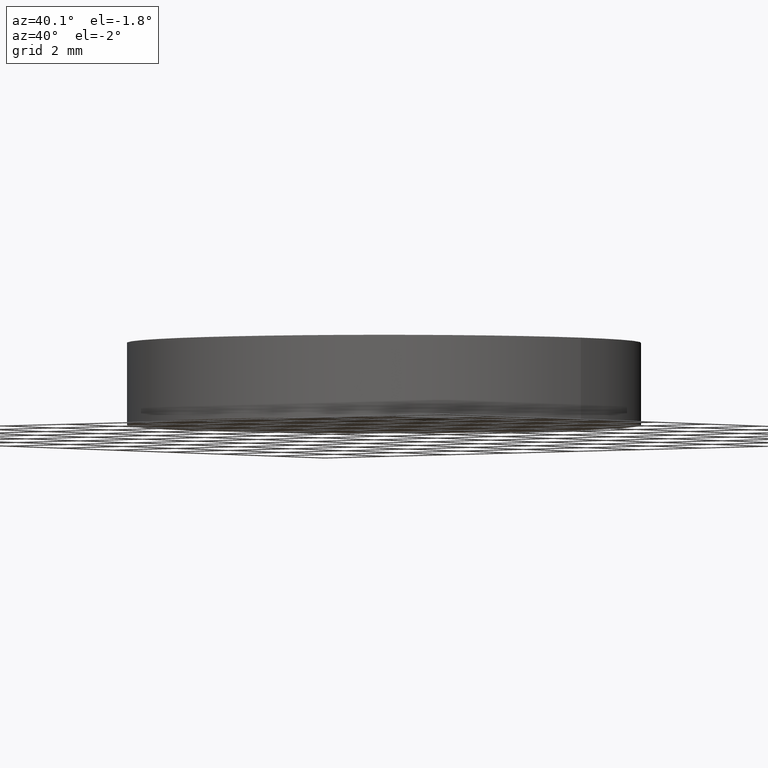
[diagram: clean part render]
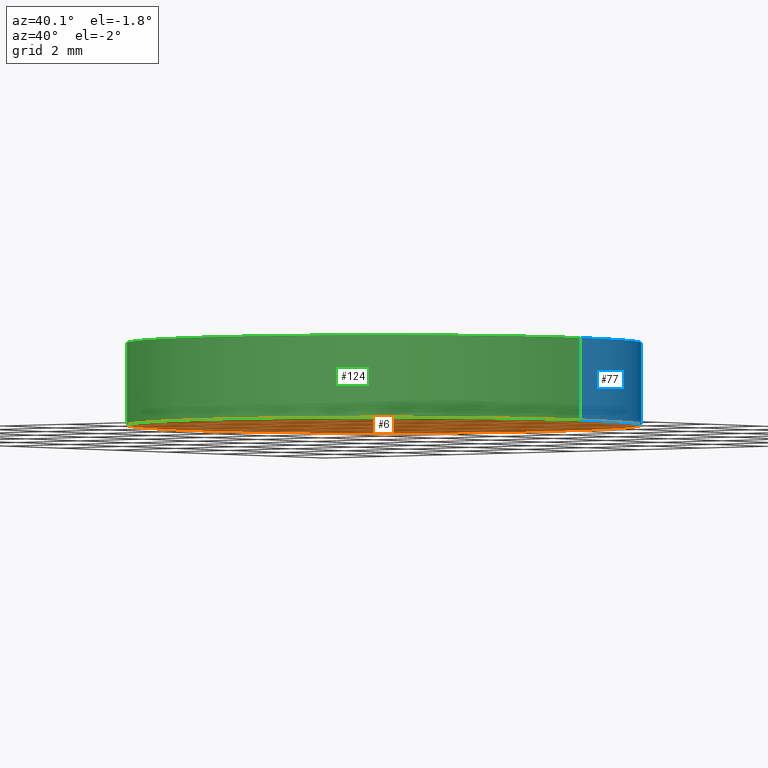
[diagram: same view with three faces highlighted in distinct colors, each labeled with its STEP entity id]
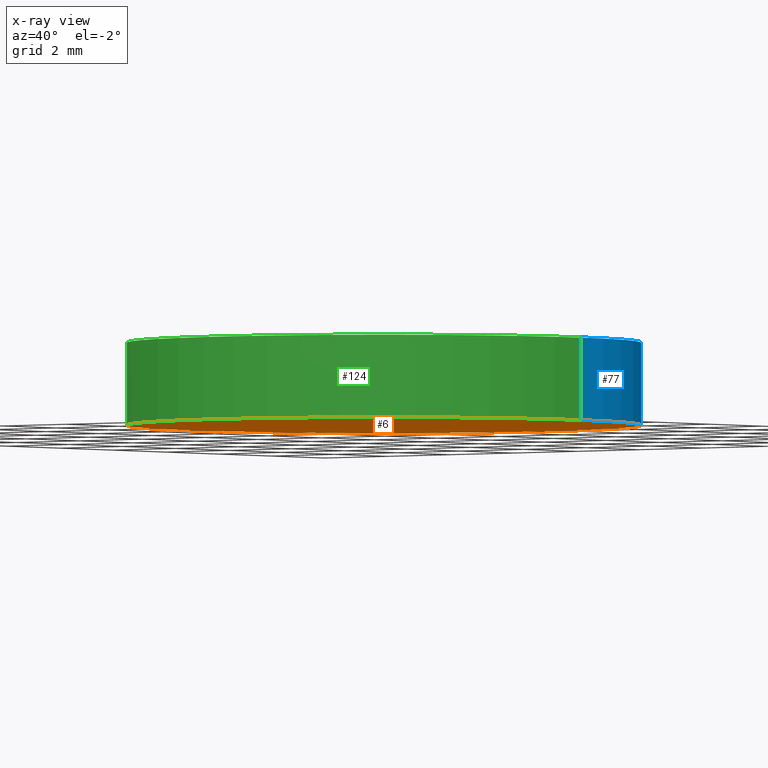
[diagram: x-ray of the same camera — body ghosted, the three highlighted faces saturated]
A machine part, auxiliary view with three faces highlighted in distinct colors.
The next image is the same camera in x-ray (body ghosted, the three faces saturated) — at least one of them is partly hidden behind the body in this view.
Their STEP definitions:

[orange] entity #6 — the highlighted planar face has unit normal (0, 0, 1).
#1 = DIRECTION ( 'NONE',  ( 0.0000000000000000000, 0.0000000000000000000, 1.000000000000000000 ) ) ;
#4 = CIRCLE ( 'NONE', #115, 6.250000000000000000 ) ;
#6 = ADVANCED_FACE ( 'NONE', ( #59 ), #35, .F. ) ;
#11 = VERTEX_POINT ( 'NONE', #78 ) ;
#13 = EDGE_CURVE ( 'NONE', #91, #11, #113, .T. ) ;
#28 = DIRECTION ( 'NONE',  ( 1.000000000000000000, 0.0000000000000000000, -0.0000000000000000000 ) ) ;
#33 = EDGE_CURVE ( 'NONE', #11, #91, #4, .T. ) ;
#35 = PLANE ( 'NONE',  #61 ) ;
#43 = ORIENTED_EDGE ( 'NONE', *, *, #33, .F. ) ;
#44 = DIRECTION ( 'NONE',  ( 1.000000000000000000, 0.0000000000000000000, 0.0000000000000000000 ) ) ;
#45 = CARTESIAN_POINT ( 'NONE',  ( 0.0000000000000000000, 0.0000000000000000000, 0.0000000000000000000 ) ) ;
#52 = DIRECTION ( 'NONE',  ( 0.0000000000000000000, 0.0000000000000000000, 1.000000000000000000 ) ) ;
#59 = FACE_OUTER_BOUND ( 'NONE', #127, .T. ) ;
#61 = AXIS2_PLACEMENT_3D ( 'NONE', #45, #52, #28 ) ;
#78 = CARTESIAN_POINT ( 'NONE',  ( 6.250000000000000000, 7.654042494670957600E-016, 0.0000000000000000000 ) ) ;
#85 = CARTESIAN_POINT ( 'NONE',  ( -6.250000000000000000, 0.0000000000000000000, 0.0000000000000000000 ) ) ;
#91 = VERTEX_POINT ( 'NONE', #85 ) ;
#94 = DIRECTION ( 'NONE',  ( 1.000000000000000000, 0.0000000000000000000, 0.0000000000000000000 ) ) ;
#103 = AXIS2_PLACEMENT_3D ( 'NONE', #128, #1, #94 ) ;
#104 = CARTESIAN_POINT ( 'NONE',  ( 0.0000000000000000000, 0.0000000000000000000, 0.0000000000000000000 ) ) ;
#113 = CIRCLE ( 'NONE', #103, 6.250000000000000000 ) ;
#115 = AXIS2_PLACEMENT_3D ( 'NONE', #104, #123, #44 ) ;
#123 = DIRECTION ( 'NONE',  ( 0.0000000000000000000, 0.0000000000000000000, 1.000000000000000000 ) ) ;
#127 = EDGE_LOOP ( 'NONE', ( #129, #43 ) ) ;
#128 = CARTESIAN_POINT ( 'NONE',  ( 0.0000000000000000000, 0.0000000000000000000, 0.0000000000000000000 ) ) ;
#129 = ORIENTED_EDGE ( 'NONE', *, *, #13, .F. ) ;

[blue] entity #77 — the highlighted cylindrical surface (partial cylindrical patch) has radius 6.25 mm, axis along (-0, -0, -1).
#4 = CIRCLE ( 'NONE', #115, 6.250000000000000000 ) ;
#7 = VERTEX_POINT ( 'NONE', #8 ) ;
#8 = CARTESIAN_POINT ( 'NONE',  ( -6.250000000000000000, 0.0000000000000000000, 2.000000000000000000 ) ) ;
#11 = VERTEX_POINT ( 'NONE', #78 ) ;
#19 = EDGE_CURVE ( 'NONE', #136, #11, #21, .T. ) ;
#20 = FACE_OUTER_BOUND ( 'NONE', #71, .T. ) ;
#21 = LINE ( 'NONE', #121, #58 ) ;
#23 = DIRECTION ( 'NONE',  ( 0.0000000000000000000, 0.0000000000000000000, 1.000000000000000000 ) ) ;
#25 = CARTESIAN_POINT ( 'NONE',  ( 6.250000000000000000, 7.654042494670957600E-016, 2.000000000000000000 ) ) ;
#27 = DIRECTION ( 'NONE',  ( -0.0000000000000000000, -0.0000000000000000000, -1.000000000000000000 ) ) ;
#29 = LINE ( 'NONE', #76, #111 ) ;
#33 = EDGE_CURVE ( 'NONE', #11, #91, #4, .T. ) ;
#36 = ORIENTED_EDGE ( 'NONE', *, *, #96, .F. ) ;
#38 = CIRCLE ( 'NONE', #50, 6.250000000000000000 ) ;
#44 = DIRECTION ( 'NONE',  ( 1.000000000000000000, 0.0000000000000000000, 0.0000000000000000000 ) ) ;
#48 = EDGE_CURVE ( 'NONE', #7, #91, #29, .T. ) ;
#50 = AXIS2_PLACEMENT_3D ( 'NONE', #112, #23, #57 ) ;
#57 = DIRECTION ( 'NONE',  ( 1.000000000000000000, 0.0000000000000000000, 0.0000000000000000000 ) ) ;
#58 = VECTOR ( 'NONE', #83, 1000.000000000000000 ) ;
#68 = ORIENTED_EDGE ( 'NONE', *, *, #33, .T. ) ;
#71 = EDGE_LOOP ( 'NONE', ( #36, #97, #68, #122 ) ) ;
#76 = CARTESIAN_POINT ( 'NONE',  ( -6.250000000000000000, 0.0000000000000000000, 2.000000000000000000 ) ) ;
#77 = ADVANCED_FACE ( 'NONE', ( #20 ), #84, .T. ) ;
#78 = CARTESIAN_POINT ( 'NONE',  ( 6.250000000000000000, 7.654042494670957600E-016, 0.0000000000000000000 ) ) ;
#83 = DIRECTION ( 'NONE',  ( -0.0000000000000000000, -0.0000000000000000000, -1.000000000000000000 ) ) ;
#84 = CYLINDRICAL_SURFACE ( 'NONE', #90, 6.250000000000000000 ) ;
#85 = CARTESIAN_POINT ( 'NONE',  ( -6.250000000000000000, 0.0000000000000000000, 0.0000000000000000000 ) ) ;
#88 = DIRECTION ( 'NONE',  ( -0.0000000000000000000, -0.0000000000000000000, -1.000000000000000000 ) ) ;
#90 = AXIS2_PLACEMENT_3D ( 'NONE', #98, #88, #110 ) ;
#91 = VERTEX_POINT ( 'NONE', #85 ) ;
#96 = EDGE_CURVE ( 'NONE', #136, #7, #38, .T. ) ;
#97 = ORIENTED_EDGE ( 'NONE', *, *, #19, .T. ) ;
#98 = CARTESIAN_POINT ( 'NONE',  ( 0.0000000000000000000, 0.0000000000000000000, 2.000000000000000000 ) ) ;
#104 = CARTESIAN_POINT ( 'NONE',  ( 0.0000000000000000000, 0.0000000000000000000, 0.0000000000000000000 ) ) ;
#110 = DIRECTION ( 'NONE',  ( -1.000000000000000000, 0.0000000000000000000, 0.0000000000000000000 ) ) ;
#111 = VECTOR ( 'NONE', #27, 1000.000000000000000 ) ;
#112 = CARTESIAN_POINT ( 'NONE',  ( 0.0000000000000000000, 0.0000000000000000000, 2.000000000000000000 ) ) ;
#115 = AXIS2_PLACEMENT_3D ( 'NONE', #104, #123, #44 ) ;
#121 = CARTESIAN_POINT ( 'NONE',  ( 6.250000000000000000, 7.654042494670957600E-016, 2.000000000000000000 ) ) ;
#122 = ORIENTED_EDGE ( 'NONE', *, *, #48, .F. ) ;
#123 = DIRECTION ( 'NONE',  ( 0.0000000000000000000, 0.0000000000000000000, 1.000000000000000000 ) ) ;
#136 = VERTEX_POINT ( 'NONE', #25 ) ;

[green] entity #124 — the highlighted cylindrical surface (partial cylindrical patch) has radius 6.25 mm, axis along (-0, -0, -1).
#1 = DIRECTION ( 'NONE',  ( 0.0000000000000000000, 0.0000000000000000000, 1.000000000000000000 ) ) ;
#7 = VERTEX_POINT ( 'NONE', #8 ) ;
#8 = CARTESIAN_POINT ( 'NONE',  ( -6.250000000000000000, 0.0000000000000000000, 2.000000000000000000 ) ) ;
#11 = VERTEX_POINT ( 'NONE', #78 ) ;
#13 = EDGE_CURVE ( 'NONE', #91, #11, #113, .T. ) ;
#14 = FACE_OUTER_BOUND ( 'NONE', #86, .T. ) ;
#15 = ORIENTED_EDGE ( 'NONE', *, *, #19, .F. ) ;
#17 = DIRECTION ( 'NONE',  ( -1.000000000000000000, 0.0000000000000000000, 0.0000000000000000000 ) ) ;
#19 = EDGE_CURVE ( 'NONE', #136, #11, #21, .T. ) ;
#21 = LINE ( 'NONE', #121, #58 ) ;
#25 = CARTESIAN_POINT ( 'NONE',  ( 6.250000000000000000, 7.654042494670957600E-016, 2.000000000000000000 ) ) ;
#27 = DIRECTION ( 'NONE',  ( -0.0000000000000000000, -0.0000000000000000000, -1.000000000000000000 ) ) ;
#29 = LINE ( 'NONE', #76, #111 ) ;
#34 = ORIENTED_EDGE ( 'NONE', *, *, #48, .T. ) ;
#46 = CARTESIAN_POINT ( 'NONE',  ( 0.0000000000000000000, 0.0000000000000000000, 2.000000000000000000 ) ) ;
#48 = EDGE_CURVE ( 'NONE', #7, #91, #29, .T. ) ;
#58 = VECTOR ( 'NONE', #83, 1000.000000000000000 ) ;
#65 = DIRECTION ( 'NONE',  ( 0.0000000000000000000, 0.0000000000000000000, 1.000000000000000000 ) ) ;
#69 = DIRECTION ( 'NONE',  ( -0.0000000000000000000, -0.0000000000000000000, -1.000000000000000000 ) ) ;
#72 = ORIENTED_EDGE ( 'NONE', *, *, #13, .T. ) ;
#76 = CARTESIAN_POINT ( 'NONE',  ( -6.250000000000000000, 0.0000000000000000000, 2.000000000000000000 ) ) ;
#78 = CARTESIAN_POINT ( 'NONE',  ( 6.250000000000000000, 7.654042494670957600E-016, 0.0000000000000000000 ) ) ;
#83 = DIRECTION ( 'NONE',  ( -0.0000000000000000000, -0.0000000000000000000, -1.000000000000000000 ) ) ;
#85 = CARTESIAN_POINT ( 'NONE',  ( -6.250000000000000000, 0.0000000000000000000, 0.0000000000000000000 ) ) ;
#86 = EDGE_LOOP ( 'NONE', ( #15, #117, #34, #72 ) ) ;
#91 = VERTEX_POINT ( 'NONE', #85 ) ;
#94 = DIRECTION ( 'NONE',  ( 1.000000000000000000, 0.0000000000000000000, 0.0000000000000000000 ) ) ;
#103 = AXIS2_PLACEMENT_3D ( 'NONE', #128, #1, #94 ) ;
#107 = AXIS2_PLACEMENT_3D ( 'NONE', #131, #65, #119 ) ;
#111 = VECTOR ( 'NONE', #27, 1000.000000000000000 ) ;
#113 = CIRCLE ( 'NONE', #103, 6.250000000000000000 ) ;
#114 = AXIS2_PLACEMENT_3D ( 'NONE', #46, #69, #17 ) ;
#117 = ORIENTED_EDGE ( 'NONE', *, *, #139, .F. ) ;
#119 = DIRECTION ( 'NONE',  ( 1.000000000000000000, 0.0000000000000000000, 0.0000000000000000000 ) ) ;
#121 = CARTESIAN_POINT ( 'NONE',  ( 6.250000000000000000, 7.654042494670957600E-016, 2.000000000000000000 ) ) ;
#124 = ADVANCED_FACE ( 'NONE', ( #14 ), #140, .T. ) ;
#128 = CARTESIAN_POINT ( 'NONE',  ( 0.0000000000000000000, 0.0000000000000000000, 0.0000000000000000000 ) ) ;
#131 = CARTESIAN_POINT ( 'NONE',  ( 0.0000000000000000000, 0.0000000000000000000, 2.000000000000000000 ) ) ;
#134 = CIRCLE ( 'NONE', #107, 6.250000000000000000 ) ;
#136 = VERTEX_POINT ( 'NONE', #25 ) ;
#139 = EDGE_CURVE ( 'NONE', #7, #136, #134, .T. ) ;
#140 = CYLINDRICAL_SURFACE ( 'NONE', #114, 6.250000000000000000 ) ;